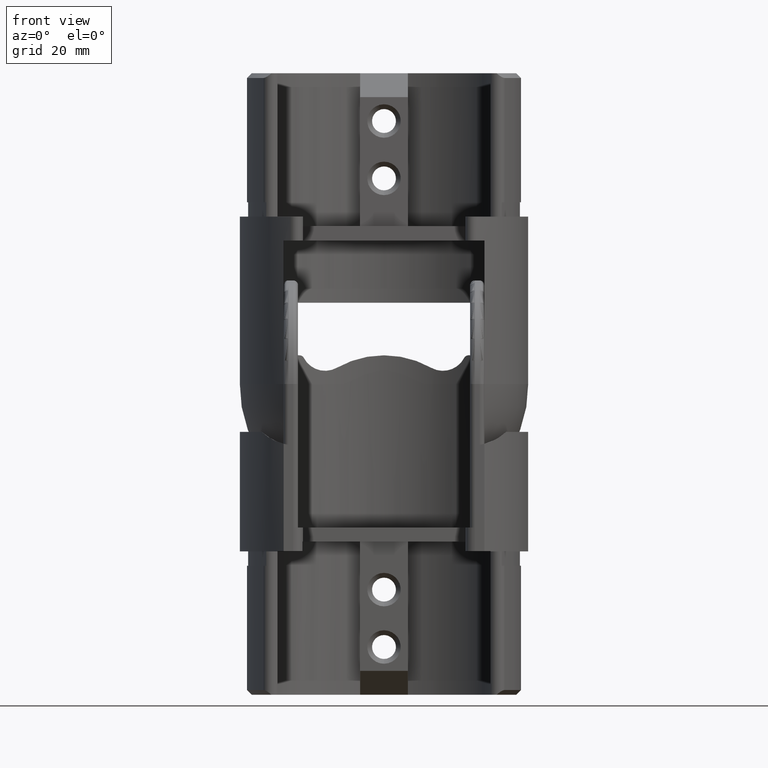
[diagram: clean part render]
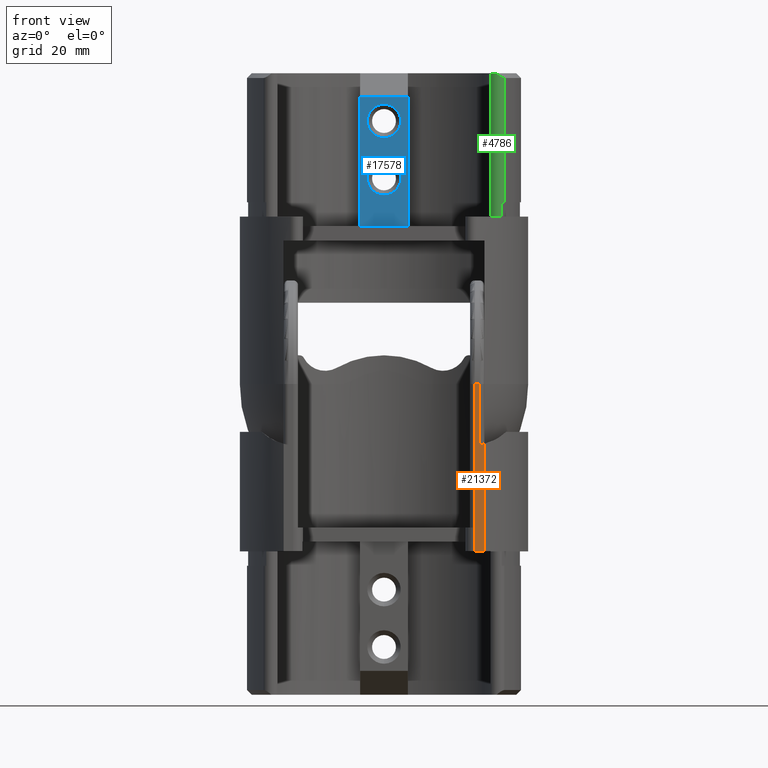
[diagram: same view with three faces highlighted in distinct colors, each labeled with its STEP entity id]
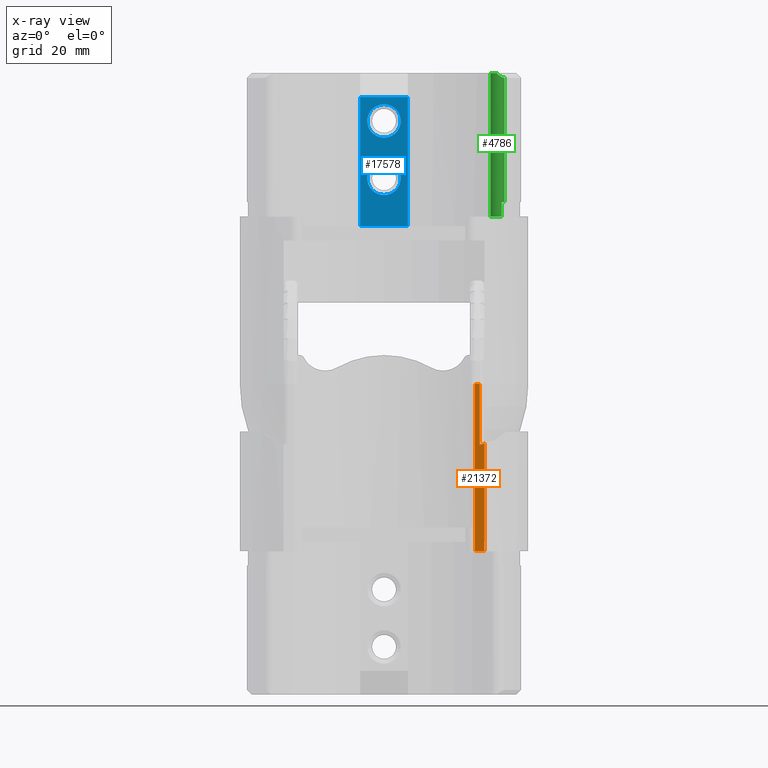
[diagram: x-ray of the same camera — body ghosted, the three highlighted faces saturated]
A machine part, front view with three faces highlighted in distinct colors.
The next image is the same camera in x-ray (body ghosted, the three faces saturated) — at least one of them is partly hidden behind the body in this view.
Their STEP definitions:

[orange] entity #21372 — the highlighted planar face has unit normal (0, 1, -0).
#606 = ORIENTED_EDGE ( 'NONE', *, *, #28718, .T. ) ;
#698 = DIRECTION ( 'NONE',  ( 0.000000000000000000, -0.000000000000000000, 1.000000000000000000 ) ) ;
#721 = AXIS2_PLACEMENT_3D ( 'NONE', #15500, #10903, #24399 ) ;
#962 = CARTESIAN_POINT ( 'NONE',  ( -49.00000000000000000, -21.64999999999999147, -33.00000000000000000 ) ) ;
#3225 = CARTESIAN_POINT ( 'NONE',  ( -19.00000000000000355, -21.64999999999999503, -3.000000000000000000 ) ) ;
#3477 = AXIS2_PLACEMENT_3D ( 'NONE', #21726, #7828, #28424 ) ;
#3709 = VERTEX_POINT ( 'NONE', #19702 ) ;
#3806 = CARTESIAN_POINT ( 'NONE',  ( -19.00000000000000355, -21.64999999999999147, -33.00000000000000000 ) ) ;
#3959 = VECTOR ( 'NONE', #698, 1000.000000000000000 ) ;
#4010 = VERTEX_POINT ( 'NONE', #4698 ) ;
#4698 = CARTESIAN_POINT ( 'NONE',  ( -20.98332671432247309, -21.65000000000001634, 2.000000000000000000 ) ) ;
#4966 = CARTESIAN_POINT ( 'NONE',  ( -19.00000000000004619, -21.64999999999999503, -3.000000000000000000 ) ) ;
#6520 = LINE ( 'NONE', #4966, #3959 ) ;
#6604 = VECTOR ( 'NONE', #9252, 1000.000000000000000 ) ;
#7300 = CARTESIAN_POINT ( 'NONE',  ( -20.98332671432248375, -21.65000000000000213, -3.000000000000000000 ) ) ;
#7768 = DIRECTION ( 'NONE',  ( 1.000000000000000000, 1.741984627813168622E-15, -0.000000000000000000 ) ) ;
#7828 = DIRECTION ( 'NONE',  ( 0.000000000000000000, 1.000000000000000000, 0.000000000000000000 ) ) ;
#9093 = VERTEX_POINT ( 'NONE', #18200 ) ;
#9252 = DIRECTION ( 'NONE',  ( -0.000000000000000000, -0.000000000000000000, 1.000000000000000000 ) ) ;
#10034 = ORIENTED_EDGE ( 'NONE', *, *, #23032, .F. ) ;
#10116 = CARTESIAN_POINT ( 'NONE',  ( -19.99999999999999289, -21.64999999999999858, -73.00000000000001421 ) ) ;
#10377 = DIRECTION ( 'NONE',  ( 0.000000000000000000, -0.000000000000000000, 1.000000000000000000 ) ) ;
#10903 = DIRECTION ( 'NONE',  ( 0.000000000000000000, 1.000000000000000000, 0.000000000000000000 ) ) ;
#11189 = LINE ( 'NONE', #962, #14120 ) ;
#12233 = ORIENTED_EDGE ( 'NONE', *, *, #23753, .F. ) ;
#12463 = DIRECTION ( 'NONE',  ( -0.000000000000000000, -0.000000000000000000, 1.000000000000000000 ) ) ;
#12481 = EDGE_CURVE ( 'NONE', #19243, #21248, #21230, .T. ) ;
#13248 = VERTEX_POINT ( 'NONE', #27657 ) ;
#14036 = VERTEX_POINT ( 'NONE', #3806 ) ;
#14120 = VECTOR ( 'NONE', #22002, 1000.000000000000000 ) ;
#14205 = CARTESIAN_POINT ( 'NONE',  ( -17.00000000000004263, -21.64999999999999503, 2.000000000000000000 ) ) ;
#14760 = ORIENTED_EDGE ( 'NONE', *, *, #12481, .T. ) ;
#15229 = FACE_OUTER_BOUND ( 'NONE', #19530, .T. ) ;
#15500 = CARTESIAN_POINT ( 'NONE',  ( -17.00000000000004263, -21.64999999999999503, -3.000000000000000000 ) ) ;
#17110 = VECTOR ( 'NONE', #10377, 1000.000000000000000 ) ;
#17164 = LINE ( 'NONE', #10116, #19715 ) ;
#17594 = EDGE_CURVE ( 'NONE', #13248, #9093, #6520, .T. ) ;
#17664 = EDGE_CURVE ( 'NONE', #14036, #13248, #17840, .T. ) ;
#17840 = LINE ( 'NONE', #3225, #17110 ) ;
#17964 = CARTESIAN_POINT ( 'NONE',  ( -20.98332671432248375, -21.64999999999999503, -20.49363618927835873 ) ) ;
#18160 = VECTOR ( 'NONE', #7768, 1000.000000000000000 ) ;
#18200 = CARTESIAN_POINT ( 'NONE',  ( -19.00000000000004619, -21.64999999999999858, 2.000000000000000000 ) ) ;
#19243 = VERTEX_POINT ( 'NONE', #17964 ) ;
#19530 = EDGE_LOOP ( 'NONE', ( #23178, #21642, #24414, #10034, #14760, #12233, #606 ) ) ;
#19566 = EDGE_CURVE ( 'NONE', #4010, #9093, #22099, .T. ) ;
#19702 = CARTESIAN_POINT ( 'NONE',  ( -20.00000000000000000, -21.64999999999999147, -33.00000000000000000 ) ) ;
#19715 = VECTOR ( 'NONE', #12463, 1000.000000000000000 ) ;
#21230 = CIRCLE ( 'NONE', #3477, 10.00000000000000178 ) ;
#21248 = VERTEX_POINT ( 'NONE', #28572 ) ;
#21372 = ADVANCED_FACE ( 'NONE', ( #15229 ), #24504, .F. ) ;
#21642 = ORIENTED_EDGE ( 'NONE', *, *, #17594, .T. ) ;
#21726 = CARTESIAN_POINT ( 'NONE',  ( -18.66000000000000014, -21.64999999999999503, -30.21999999999999531 ) ) ;
#22002 = DIRECTION ( 'NONE',  ( 1.000000000000000000, -0.000000000000000000, -0.000000000000000000 ) ) ;
#22099 = LINE ( 'NONE', #14205, #18160 ) ;
#22604 = LINE ( 'NONE', #7300, #6604 ) ;
#23032 = EDGE_CURVE ( 'NONE', #19243, #4010, #22604, .T. ) ;
#23178 = ORIENTED_EDGE ( 'NONE', *, *, #17664, .T. ) ;
#23753 = EDGE_CURVE ( 'NONE', #3709, #21248, #17164, .T. ) ;
#24399 = DIRECTION ( 'NONE',  ( 0.000000000000000000, -0.000000000000000000, 1.000000000000000000 ) ) ;
#24414 = ORIENTED_EDGE ( 'NONE', *, *, #19566, .F. ) ;
#24504 = PLANE ( 'NONE',  #721 ) ;
#27657 = CARTESIAN_POINT ( 'NONE',  ( -19.00000000000000355, -21.64999999999999503, -3.000000000000000000 ) ) ;
#28424 = DIRECTION ( 'NONE',  ( 0.000000000000000000, 0.000000000000000000, 1.000000000000000000 ) ) ;
#28572 = CARTESIAN_POINT ( 'NONE',  ( -19.99999999999999289, -21.64999999999999858, -20.31018668187941500 ) ) ;
#28718 = EDGE_CURVE ( 'NONE', #3709, #14036, #11189, .T. ) ;

[blue] entity #17578 — the highlighted planar face has unit normal (0, -1, 0).
#307 = CARTESIAN_POINT ( 'NONE',  ( -5.000000000000000000, 19.14999999999999858, 0.000000000000000000 ) ) ;
#1137 = DIRECTION ( 'NONE',  ( 0.000000000000000000, 0.000000000000000000, -1.000000000000000000 ) ) ;
#3266 = EDGE_CURVE ( 'NONE', #16800, #21764, #19808, .T. ) ;
#3460 = DIRECTION ( 'NONE',  ( -0.000000000000000000, 1.000000000000000000, -0.000000000000000000 ) ) ;
#3887 = ORIENTED_EDGE ( 'NONE', *, *, #4141, .T. ) ;
#4141 = EDGE_CURVE ( 'NONE', #25274, #24629, #17203, .T. ) ;
#4265 = EDGE_CURVE ( 'NONE', #21764, #16800, #16848, .T. ) ;
#4603 = CARTESIAN_POINT ( 'NONE',  ( 0.000000000000000000, 19.14999999999999858, 22.00000000000000000 ) ) ;
#4904 = DIRECTION ( 'NONE',  ( -0.000000000000000000, 1.000000000000000000, -0.000000000000000000 ) ) ;
#5259 = ORIENTED_EDGE ( 'NONE', *, *, #13307, .F. ) ;
#5317 = LINE ( 'NONE', #6688, #6051 ) ;
#5682 = DIRECTION ( 'NONE',  ( 0.000000000000000000, 0.000000000000000000, 1.000000000000000000 ) ) ;
#5712 = CARTESIAN_POINT ( 'NONE',  ( 0.000000000000000000, 19.14999999999999858, 22.00000000000000000 ) ) ;
#6051 = VECTOR ( 'NONE', #25177, 1000.000000000000000 ) ;
#6688 = CARTESIAN_POINT ( 'NONE',  ( 5.000000000000000000, 19.14999999999999858, 0.000000000000000000 ) ) ;
#7077 = ORIENTED_EDGE ( 'NONE', *, *, #9102, .T. ) ;
#7941 = VERTEX_POINT ( 'NONE', #26474 ) ;
#8194 = ORIENTED_EDGE ( 'NONE', *, *, #22770, .T. ) ;
#8662 = DIRECTION ( 'NONE',  ( 0.000000000000000000, 0.000000000000000000, -1.000000000000000000 ) ) ;
#8840 = EDGE_CURVE ( 'NONE', #27824, #20375, #27146, .T. ) ;
#9102 = EDGE_CURVE ( 'NONE', #14350, #7941, #5317, .T. ) ;
#10315 = DIRECTION ( 'NONE',  ( -0.000000000000000000, 1.000000000000000000, -0.000000000000000000 ) ) ;
#10893 = CARTESIAN_POINT ( 'NONE',  ( -5.000000000000000000, 19.14999999999999858, 26.99999999999997868 ) ) ;
#13019 = ORIENTED_EDGE ( 'NONE', *, *, #3266, .T. ) ;
#13307 = EDGE_CURVE ( 'NONE', #14350, #27824, #29210, .T. ) ;
#13730 = AXIS2_PLACEMENT_3D ( 'NONE', #307, #14560, #23758 ) ;
#14084 = AXIS2_PLACEMENT_3D ( 'NONE', #4603, #4904, #16436 ) ;
#14095 = DIRECTION ( 'NONE',  ( -1.000000000000000000, 0.000000000000000000, 0.000000000000000000 ) ) ;
#14350 = VERTEX_POINT ( 'NONE', #17850 ) ;
#14364 = PLANE ( 'NONE',  #13730 ) ;
#14466 = ORIENTED_EDGE ( 'NONE', *, *, #8840, .F. ) ;
#14560 = DIRECTION ( 'NONE',  ( 0.000000000000000000, -1.000000000000000000, 0.000000000000000000 ) ) ;
#14673 = CARTESIAN_POINT ( 'NONE',  ( -5.000000000000000000, 19.14999999999999858, 0.000000000000000000 ) ) ;
#15259 = EDGE_LOOP ( 'NONE', ( #3887, #22684 ) ) ;
#15466 = CARTESIAN_POINT ( 'NONE',  ( 0.000000000000000000, 19.14999999999999858, 18.49999999999998224 ) ) ;
#15506 = DIRECTION ( 'NONE',  ( -0.000000000000000000, 1.000000000000000000, -0.000000000000000000 ) ) ;
#15626 = CARTESIAN_POINT ( 'NONE',  ( -5.000000000000000000, 19.14999999999999858, 0.000000000000000000 ) ) ;
#16436 = DIRECTION ( 'NONE',  ( 0.000000000000000000, 0.000000000000000000, -1.000000000000000000 ) ) ;
#16728 = FACE_BOUND ( 'NONE', #22514, .T. ) ;
#16800 = VERTEX_POINT ( 'NONE', #29507 ) ;
#16848 = CIRCLE ( 'NONE', #28145, 3.500000000000018652 ) ;
#17203 = CIRCLE ( 'NONE', #27751, 3.500000000000016875 ) ;
#17578 = ADVANCED_FACE ( 'NONE', ( #27231, #16728, #23248 ), #14364, .T. ) ;
#17850 = CARTESIAN_POINT ( 'NONE',  ( 5.000000000000000000, 19.14999999999999858, 0.000000000000000000 ) ) ;
#19012 = VECTOR ( 'NONE', #27103, 1000.000000000000000 ) ;
#19166 = CARTESIAN_POINT ( 'NONE',  ( 5.000000000000000000, 19.14999999999999858, 0.000000000000000000 ) ) ;
#19410 = VECTOR ( 'NONE', #14095, 1000.000000000000000 ) ;
#19423 = AXIS2_PLACEMENT_3D ( 'NONE', #19576, #10315, #26526 ) ;
#19576 = CARTESIAN_POINT ( 'NONE',  ( 0.000000000000000000, 19.14999999999999858, 10.00000000000000000 ) ) ;
#19808 = CIRCLE ( 'NONE', #19423, 3.500000000000018652 ) ;
#20375 = VERTEX_POINT ( 'NONE', #25477 ) ;
#21010 = VECTOR ( 'NONE', #5682, 1000.000000000000000 ) ;
#21191 = CARTESIAN_POINT ( 'NONE',  ( 4.286263797015757796E-16, 19.14999999999999858, 25.50000000000001421 ) ) ;
#21719 = CIRCLE ( 'NONE', #14084, 3.500000000000016875 ) ;
#21764 = VERTEX_POINT ( 'NONE', #28839 ) ;
#22474 = CARTESIAN_POINT ( 'NONE',  ( 0.000000000000000000, 19.14999999999999858, 10.00000000000000000 ) ) ;
#22514 = EDGE_LOOP ( 'NONE', ( #27993, #13019 ) ) ;
#22684 = ORIENTED_EDGE ( 'NONE', *, *, #28961, .T. ) ;
#22770 = EDGE_CURVE ( 'NONE', #7941, #20375, #24061, .T. ) ;
#23248 = FACE_BOUND ( 'NONE', #15259, .T. ) ;
#23758 = DIRECTION ( 'NONE',  ( 0.000000000000000000, -0.000000000000000000, -1.000000000000000000 ) ) ;
#24061 = LINE ( 'NONE', #10893, #19012 ) ;
#24422 = EDGE_LOOP ( 'NONE', ( #14466, #5259, #7077, #8194 ) ) ;
#24629 = VERTEX_POINT ( 'NONE', #21191 ) ;
#25177 = DIRECTION ( 'NONE',  ( 0.000000000000000000, 0.000000000000000000, 1.000000000000000000 ) ) ;
#25274 = VERTEX_POINT ( 'NONE', #15466 ) ;
#25477 = CARTESIAN_POINT ( 'NONE',  ( -5.000000000000000000, 19.14999999999999858, 26.99999999999997868 ) ) ;
#26474 = CARTESIAN_POINT ( 'NONE',  ( 5.000000000000000000, 19.14999999999999858, 26.99999999999997868 ) ) ;
#26526 = DIRECTION ( 'NONE',  ( 0.000000000000000000, 0.000000000000000000, -1.000000000000000000 ) ) ;
#27103 = DIRECTION ( 'NONE',  ( -1.000000000000000000, 0.000000000000000000, 0.000000000000000000 ) ) ;
#27146 = LINE ( 'NONE', #14673, #21010 ) ;
#27231 = FACE_OUTER_BOUND ( 'NONE', #24422, .T. ) ;
#27751 = AXIS2_PLACEMENT_3D ( 'NONE', #5712, #3460, #1137 ) ;
#27824 = VERTEX_POINT ( 'NONE', #15626 ) ;
#27993 = ORIENTED_EDGE ( 'NONE', *, *, #4265, .T. ) ;
#28145 = AXIS2_PLACEMENT_3D ( 'NONE', #22474, #15506, #8662 ) ;
#28839 = CARTESIAN_POINT ( 'NONE',  ( 0.000000000000000000, 19.14999999999999858, 6.499999999999981348 ) ) ;
#28961 = EDGE_CURVE ( 'NONE', #24629, #25274, #21719, .T. ) ;
#29210 = LINE ( 'NONE', #19166, #19410 ) ;
#29507 = CARTESIAN_POINT ( 'NONE',  ( 4.286263797015759275E-16, 19.14999999999999858, 13.50000000000001954 ) ) ;

[green] entity #4786 — the highlighted cylindrical surface (edge-blend (fillet) strip) has radius 1.7 mm, axis along (-0, -0, -1).
#1361 = EDGE_CURVE ( 'NONE', #14718, #15706, #5270, .T. ) ;
#1383 = DIRECTION ( 'NONE',  ( -0.000000000000000000, 1.084202172485504434E-16, -1.000000000000000000 ) ) ;
#2495 = CARTESIAN_POINT ( 'NONE',  ( 24.61739527561356411, -14.26135862546758304, 5.000000000000000888 ) ) ;
#2506 = CARTESIAN_POINT ( 'NONE',  ( 25.19499072356214953, -13.63946268881648294, 30.99999999999998224 ) ) ;
#2601 = ORIENTED_EDGE ( 'NONE', *, *, #1361, .T. ) ;
#2668 = ORIENTED_EDGE ( 'NONE', *, *, #14074, .T. ) ;
#4108 = DIRECTION ( 'NONE',  ( 1.000000000000000000, 0.000000000000000000, 0.000000000000000000 ) ) ;
#4606 = ORIENTED_EDGE ( 'NONE', *, *, #20563, .F. ) ;
#4786 = ADVANCED_FACE ( 'NONE', ( #19353 ), #29890, .T. ) ;
#5239 = CARTESIAN_POINT ( 'NONE',  ( 24.11508170127265771, -14.48560357701799362, 31.51887201368386826 ) ) ;
#5270 = CIRCLE ( 'NONE', #17463, 1.700000000000000178 ) ;
#5771 = CIRCLE ( 'NONE', #22305, 1.700000000000000178 ) ;
#7410 = VERTEX_POINT ( 'NONE', #11699 ) ;
#8412 = CARTESIAN_POINT ( 'NONE',  ( 24.61739527561361029, -14.26135862546751198, 2.500000000000001776 ) ) ;
#8478 = CARTESIAN_POINT ( 'NONE',  ( 22.25661668238471691, -13.72827424891396753, 32.00000000000000000 ) ) ;
#8484 = ORIENTED_EDGE ( 'NONE', *, *, #11608, .F. ) ;
#9289 = ORIENTED_EDGE ( 'NONE', *, *, #26917, .F. ) ;
#9523 = CARTESIAN_POINT ( 'NONE',  ( 25.09705802865043367, -13.80328451201101103, 31.00764639566268954 ) ) ;
#9629 = CARTESIAN_POINT ( 'NONE',  ( 24.56720326264888499, -14.30158958738649488, 31.22352491360607729 ) ) ;
#10308 = LINE ( 'NONE', #27279, #28083 ) ;
#10652 = EDGE_CURVE ( 'NONE', #26362, #15706, #22008, .T. ) ;
#11367 = VERTEX_POINT ( 'NONE', #8478 ) ;
#11608 = EDGE_CURVE ( 'NONE', #24999, #26362, #23415, .T. ) ;
#11699 = CARTESIAN_POINT ( 'NONE',  ( 25.19499072356214953, -13.63946268881648294, 30.99999999999998224 ) ) ;
#12053 = ORIENTED_EDGE ( 'NONE', *, *, #28534, .T. ) ;
#12227 = CARTESIAN_POINT ( 'NONE',  ( 23.69999999999999929, -12.83014029541376289, 32.00000000000000000 ) ) ;
#13436 = AXIS2_PLACEMENT_3D ( 'NONE', #20483, #20882, #18566 ) ;
#13961 = CARTESIAN_POINT ( 'NONE',  ( 25.19499072356214953, -13.63946268881648294, 5.000000000000001776 ) ) ;
#14074 = EDGE_CURVE ( 'NONE', #11367, #14718, #10308, .T. ) ;
#14718 = VERTEX_POINT ( 'NONE', #18105 ) ;
#15706 = VERTEX_POINT ( 'NONE', #19094 ) ;
#16165 = CARTESIAN_POINT ( 'NONE',  ( 24.26816486449074617, -14.44085231323511742, 31.41060223046890343 ) ) ;
#17262 = DIRECTION ( 'NONE',  ( -1.000000000000000000, 0.000000000000000000, 0.000000000000000000 ) ) ;
#17285 = AXIS2_PLACEMENT_3D ( 'NONE', #12227, #19946, #26596 ) ;
#17463 = AXIS2_PLACEMENT_3D ( 'NONE', #22454, #24590, #4108 ) ;
#18105 = CARTESIAN_POINT ( 'NONE',  ( 22.25661668238471691, -13.72827424891396753, 2.000000000000001776 ) ) ;
#18566 = DIRECTION ( 'NONE',  ( 0.000000000000000000, 1.000000000000000000, 0.000000000000000000 ) ) ;
#18668 = ORIENTED_EDGE ( 'NONE', *, *, #10652, .F. ) ;
#18715 = CARTESIAN_POINT ( 'NONE',  ( 23.69999999999999929, -12.83014029541376289, 32.00000000000000000 ) ) ;
#18853 = EDGE_LOOP ( 'NONE', ( #2668, #2601, #18668, #8484, #9289, #12053, #4606 ) ) ;
#19094 = CARTESIAN_POINT ( 'NONE',  ( 24.61739527561361029, -14.26135862546751198, 2.000000000000000000 ) ) ;
#19353 = FACE_OUTER_BOUND ( 'NONE', #18853, .T. ) ;
#19393 = CARTESIAN_POINT ( 'NONE',  ( 23.52968355025599934, -14.52158710419806376, 32.00000000000000000 ) ) ;
#19907 = B_SPLINE_CURVE_WITH_KNOTS ( 'NONE', 3,
 ( #2506, #23421, #9523, #25471, #27804, #25771, #9629, #16165, #5239, #21593, #28391, #19393 ),
 .UNSPECIFIED., .F., .F.,
 ( 4, 2, 2, 2, 2, 4 ),
 ( 0.000000000000000000, 0.0002842746041584886412, 0.0005685492083169772825, 0.001137098416633961070, 0.001705647624950939762, 0.002274196833267918237 ),
 .UNSPECIFIED. ) ;
#19946 = DIRECTION ( 'NONE',  ( -0.000000000000000000, -0.000000000000000000, -1.000000000000000000 ) ) ;
#20483 = CARTESIAN_POINT ( 'NONE',  ( 23.69999999999999929, -12.83014029541376289, 5.000000000000000888 ) ) ;
#20528 = DIRECTION ( 'NONE',  ( -0.000000000000000000, -0.000000000000000000, -1.000000000000000000 ) ) ;
#20563 = EDGE_CURVE ( 'NONE', #11367, #29475, #5771, .T. ) ;
#20882 = DIRECTION ( 'NONE',  ( -0.000000000000000000, 1.084202172485504434E-16, -1.000000000000000000 ) ) ;
#21593 = CARTESIAN_POINT ( 'NONE',  ( 23.81646506303475164, -14.53286968805475787, 31.74984238751218868 ) ) ;
#21801 = DIRECTION ( 'NONE',  ( 0.000000000000000000, 0.000000000000000000, 1.000000000000000000 ) ) ;
#22008 = LINE ( 'NONE', #8412, #23073 ) ;
#22305 = AXIS2_PLACEMENT_3D ( 'NONE', #18715, #21801, #17262 ) ;
#22454 = CARTESIAN_POINT ( 'NONE',  ( 23.69999999999999929, -12.83014029541376289, 2.000000000000001776 ) ) ;
#23073 = VECTOR ( 'NONE', #1383, 1000.000000000000000 ) ;
#23278 = DIRECTION ( 'NONE',  ( -0.000000000000000000, -0.000000000000000000, -1.000000000000000000 ) ) ;
#23415 = CIRCLE ( 'NONE', #13436, 1.699999999999998401 ) ;
#23421 = CARTESIAN_POINT ( 'NONE',  ( 25.14910588231344590, -13.72422175711621861, 30.99999999999998224 ) ) ;
#24590 = DIRECTION ( 'NONE',  ( 0.000000000000000000, 0.000000000000000000, 1.000000000000000000 ) ) ;
#24677 = VECTOR ( 'NONE', #23278, 1000.000000000000000 ) ;
#24999 = VERTEX_POINT ( 'NONE', #13961 ) ;
#25471 = CARTESIAN_POINT ( 'NONE',  ( 24.98163761089540458, -13.95093726010077262, 31.03702561528605486 ) ) ;
#25771 = CARTESIAN_POINT ( 'NONE',  ( 24.71603985641999657, -14.20524347694293077, 31.14313317305561668 ) ) ;
#26362 = VERTEX_POINT ( 'NONE', #2495 ) ;
#26596 = DIRECTION ( 'NONE',  ( -1.000000000000000000, 0.000000000000000000, 0.000000000000000000 ) ) ;
#26857 = LINE ( 'NONE', #27757, #24677 ) ;
#26917 = EDGE_CURVE ( 'NONE', #7410, #24999, #26857, .T. ) ;
#27279 = CARTESIAN_POINT ( 'NONE',  ( 22.25661668238471691, -13.72827424891396753, 32.00000000000000000 ) ) ;
#27701 = CARTESIAN_POINT ( 'NONE',  ( 23.52968355025599934, -14.52158710419806376, 32.00000000000000000 ) ) ;
#27757 = CARTESIAN_POINT ( 'NONE',  ( 25.19499072356214953, -13.63946268881648294, 32.00000000000000000 ) ) ;
#27804 = CARTESIAN_POINT ( 'NONE',  ( 24.91742171057649458, -14.02018055357285853, 31.05916511495457399 ) ) ;
#28083 = VECTOR ( 'NONE', #20528, 1000.000000000000000 ) ;
#28391 = CARTESIAN_POINT ( 'NONE',  ( 23.67127169500717088, -14.53584400545834576, 31.87202325229836219 ) ) ;
#28534 = EDGE_CURVE ( 'NONE', #7410, #29475, #19907, .T. ) ;
#29475 = VERTEX_POINT ( 'NONE', #27701 ) ;
#29890 = CYLINDRICAL_SURFACE ( 'NONE', #17285, 1.700000000000000178 ) ;